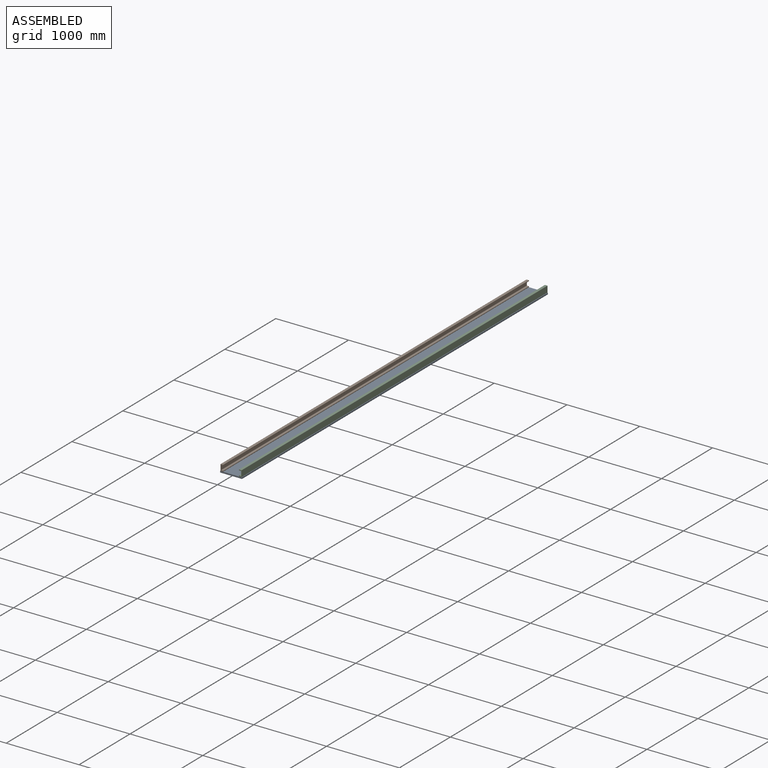
[diagram: assembled view]
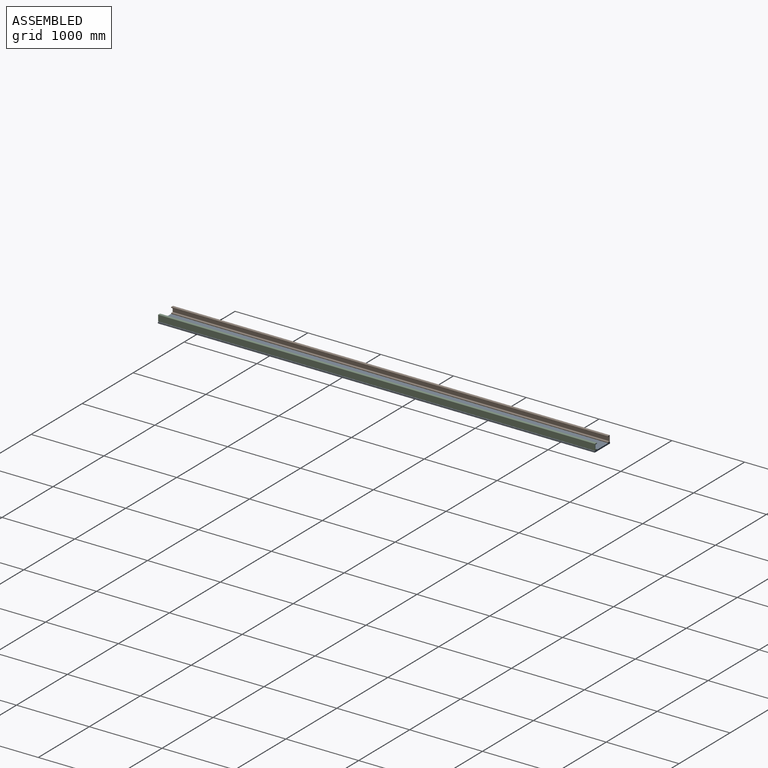
[diagram: assembled view, second angle]
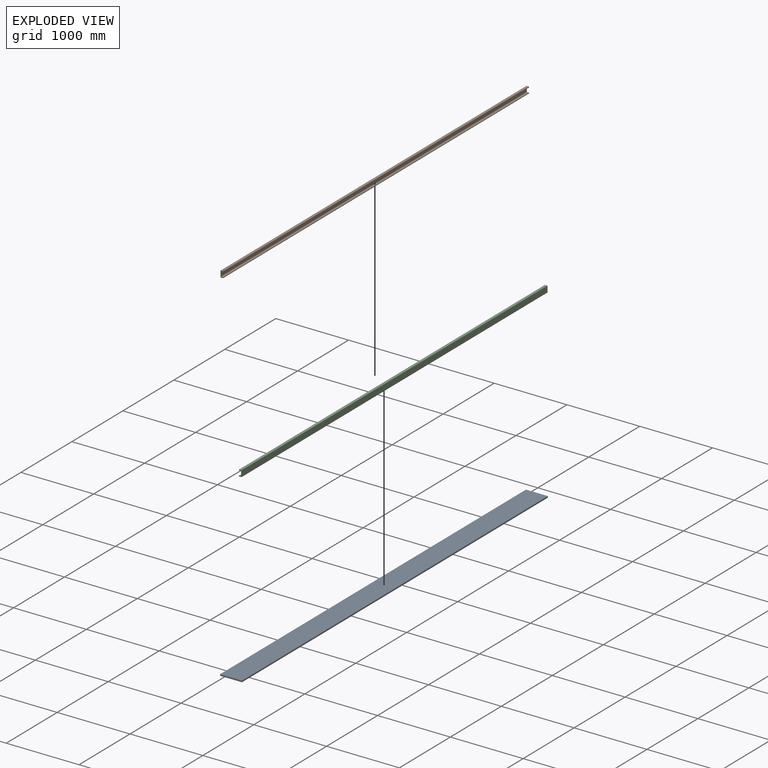
[diagram: exploded view]
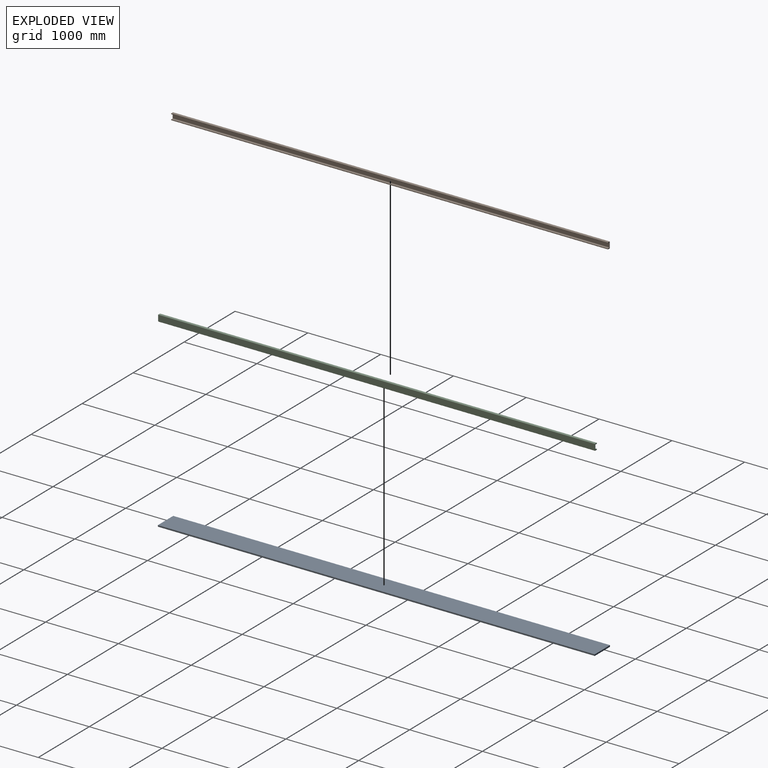
[diagram: exploded view, second angle]
ASSEMBLY  parts=3 mates=2
PART A: 6 faces, bbox 300x6000x20 mm
  f0: plane 6000x300mm, normal (0,0,1), area 1800000mm2, adj f1,f3,f4,f5
  f1: plane 6000x20mm, normal (-1,0,0), area 120000mm2, adj f0,f2,f4,f5
  f2: plane 6000x300mm, normal (0,0,-1), area 1800000mm2, adj f1,f3,f4,f5
  f3: plane 6000x20mm, normal (1,0,0), area 120000mm2, adj f0,f2,f4,f5
  f4: plane 300x20mm, normal (0,-1,0), area 6000mm2, adj f0,f1,f2,f3
  f5: plane 300x20mm, normal (0,1,0), area 6000mm2, adj f0,f1,f2,f3
PART B: 18 faces, bbox 36x6000x86.5 mm
  f0: plane 6000x32mm, normal (0,0,-1), area 192000mm2, adj f1,f15,f16,f17
  f1: cylinder r=2mm len=6000mm, axis (0,1,0), area 18849.6mm2, adj f0,f2,f16,f17
  f2: plane 6000x8mm, normal (1,0,0), area 48000mm2, adj f1,f3,f16,f17
  f3: cylinder r=2mm len=6000mm, axis (0,1,0), area 18849.6mm2, adj f2,f4,f16,f17
  f4: plane 6000x25mm, normal (0,0,1), area 150000mm2, adj f3,f5,f16,f17
  f5: cylinder r=2mm len=6000mm, axis (0,1,0), area 18849.6mm2, adj f4,f6,f16,f17
  f6: plane 6000x58.5mm, normal (1,0,0), area 351000mm2, adj f5,f7,f16,f17
  f7: cylinder r=2mm len=6000mm, axis (0,1,0), area 18849.6mm2, adj f6,f8,f16,f17
  f8: plane 6000x25mm, normal (0,0,-1), area 150000mm2, adj f7,f9,f16,f17
  f9: cylinder r=2mm len=6000mm, axis (0,1,0), area 18849.6mm2, adj f8,f10,f16,f17
  f10: plane 6000x8mm, normal (1,0,0), area 48000mm2, adj f9,f11,f16,f17
  f11: cylinder r=2mm len=6000mm, axis (0,1,0), area 18849.6mm2, adj f10,f12,f16,f17
  f12: plane 6000x32mm, normal (0,0,1), area 192000mm2, adj f11,f13,f16,f17
  f13: cylinder r=2mm len=6000mm, axis (0,1,0), area 18849.6mm2, adj f12,f14,f16,f17
  f14: plane 6000x82.5mm, normal (-1,0,0), area 495000mm2, adj f13,f15,f16,f17
  f15: cylinder r=2mm len=6000mm, axis (0,1,0), area 18849.6mm2, adj f0,f14,f16,f17
  f16: plane 86.5x36mm, normal (0,-1,0), area 1298.1mm2, adj f0,f1,f2,f3,f4,f5,f6,f7
  f17: plane 86.5x36mm, normal (0,1,0), area 1298.1mm2, adj f0,f1,f2,f3,f4,f5,f6,f7
PART C: same geometry as B
PLACE A t=(-645.49,-309.14,293.36)mm
PLACE B t=(-906.82,-308.64,310.42)mm
PLACE C rot(axis=(0,1,0),180deg) t=(-684.15,-309.14,403.88)mm
MATE parallel B.f0 <-> A.f0  axis (0,0,-1) through (-938.49,-3308.64,313.36)mm
MATE parallel C.f12 <-> A.f0  axis (0,0,-1) through (-652.49,-3309.14,314.44)mm
